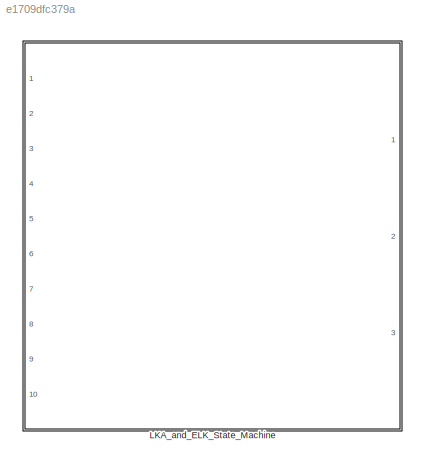
MODEL slx_e1709dfc379a
KIND model
CONFIG AbsTol = auto
CONFIG EnableMultiTasking = off
CONFIG FixedStep = auto
CONFIG MaxStep = auto
CONFIG MinStep = auto
CONFIG RelTol = 1e-3
CONFIG SampleTimeConstraint = Unconstrained
CONFIG Solver = VariableStepAuto
CONFIG SolverName = VariableStepAuto
CONFIG StartTime = 0.0
CONFIG StopTime = 10.0
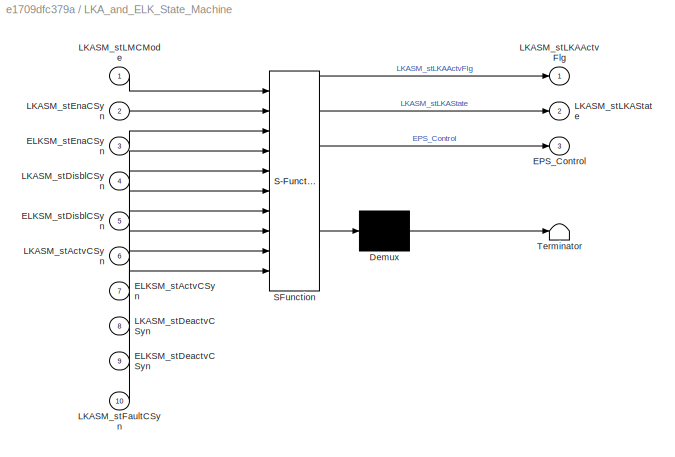
BLOCK [SubSystem] LKA_and_ELK_State_Machine
  Description = Block Name: LKA State Machine\nAb.: LKASM\nNo.: 1.1.3.0\nRev: 0.0.1\nUpdate Date: 19-3-26
  ErrorFcn = Stateflow.Translate.translate
  PermitHierarchicalResolution = ExplicitOnly
  Ports = [10, 3]
  RTWSystemCode = Nonreusable function
  RequestExecContextInheritance = off
  SFBlockType = Chart
  TreatAsAtomicUnit = on
BLOCK [Demux] LKA_and_ELK_State_Machine/ Demux 
  Outputs = 1
  Ports = [1, 1]
BLOCK [S-Function] LKA_and_ELK_State_Machine/ SFunction 
  EnableBusSupport = on
  FunctionName = sf_sfun
  PortCounts = [10 4]
  Ports = [10, 4]
  SFcnIsStateOwnerBlock = off
  SFunctionDeploymentMode = off
  Tag = Stateflow S-Function LKA_and_ELK_State_Machine 7
BLOCK [Terminator] LKA_and_ELK_State_Machine/ Terminator 
BLOCK [Inport] LKA_and_ELK_State_Machine/ELKSM_stActvCSyn
  IconDisplay = Port number
  Port = 7
BLOCK [Inport] LKA_and_ELK_State_Machine/ELKSM_stDeactvCSyn
  IconDisplay = Port number
  Port = 9
BLOCK [Inport] LKA_and_ELK_State_Machine/ELKSM_stDisblCSyn
  IconDisplay = Port number
  Port = 5
BLOCK [Inport] LKA_and_ELK_State_Machine/ELKSM_stEnaCSyn
  IconDisplay = Port number
  Port = 3
BLOCK [Outport] LKA_and_ELK_State_Machine/EPS_Control
  IconDisplay = Port number
  Port = 3
BLOCK [Inport] LKA_and_ELK_State_Machine/LKASM_stActvCSyn
  IconDisplay = Port number
  Port = 6
BLOCK [Inport] LKA_and_ELK_State_Machine/LKASM_stDeactvCSyn
  IconDisplay = Port number
  Port = 8
BLOCK [Inport] LKA_and_ELK_State_Machine/LKASM_stDisblCSyn
  IconDisplay = Port number
  Port = 4
BLOCK [Inport] LKA_and_ELK_State_Machine/LKASM_stEnaCSyn
  IconDisplay = Port number
  Port = 2
BLOCK [Inport] LKA_and_ELK_State_Machine/LKASM_stFaultCSyn
  IconDisplay = Port number
  Port = 10
BLOCK [Outport] LKA_and_ELK_State_Machine/LKASM_stLKAActvFlg
  IconDisplay = Port number
BLOCK [Outport] LKA_and_ELK_State_Machine/LKASM_stLKAState
  IconDisplay = Port number
  Port = 2
BLOCK [Inport] LKA_and_ELK_State_Machine/LKASM_stLMCMode
  IconDisplay = Port number
CHART LKA_and_ELK_State_Machine states=15 transitions=32
  STATE_LABEL 'SysOn'
  STATE_LABEL 'LKASelected\nen:\nLKASM_stLKAState = uint8(2);\n'
  STATE_LABEL 'Normal\n'
  STATE_LABEL 'LKA_Enable\nen:\nEPS_Control = uint8(1);\nex:\nEPS_Control = uint8(0);'
  STATE_LABEL 'LKAEnable\nen:\nLKASM_stLKAState = uint8(3);\nEPS_Control = uint8(1)\n\n'
  STATE_LABEL 'LKALeftActive\nen:\nLKASM_stLKAState = uint8(4);\nLKASM_stLKAActvFlg = LKASM_stActvCSyn;\nex:\nLKASM_stLKAActvFlg = uint8(0);\n'
  STATE_LABEL 'LKARightActive\nen:\nLKASM_stLKAState = uint8(5);\nLKASM_stLKAActvFlg = LKASM_stActvCSyn;\nex:\nLKASM_stLKAActvFlg = uint8(0);\n'
  STATE_LABEL '[LKASM_stActvCSyn == 1 & LKASM_stDeactvCSyn ==0 ]'
  STATE_LABEL '[LKASM_stActvCSyn == 2 & LKASM_stDeactvCSyn ==0 ]'
  STATE_LABEL '[LKASM_stDeactvCSyn ==1 ]'
  STATE_LABEL '[LKASM_stDeactvCSyn == 1]'
  STATE_LABEL '[LKASM_stActvCSyn == 2 & LKASM_stDeactvCSyn ==0]'
  STATE_LABEL '[LKASM_stActvCSyn == 1 & LKASM_stDeactvCSyn ==0]'
  STATE_LABEL 'ELK_Enable\nen:\nEPS_Control = uint8(2);\nex:\nEPS_Control = uint8(0);'
  STATE_LABEL 'ELKEnable\nen:\nLKASM_stLKAState = uint8(3);\n\n'
  STATE_LABEL 'ELKLeftActive\nen:\nLKASM_stLKAState = uint8(4);\nLKASM_stLKAActvFlg = ELKSM_stActvCSyn;\nex:\nLKASM_stLKAActvFlg = uint8(0);\n'
  STATE_LABEL 'ELKRightActive\nen:\nLKASM_stLKAState = uint8(5);\nLKASM_stLKAActvFlg = ELKSM_stActvCSyn;\nex:\nLKASM_stLKAActvFlg = uint8(0);\n'
  STATE_LABEL '[ELKSM_stActvCSyn < 15 & ELKSM_stDeactvCSyn ==0 ]'
  STATE_LABEL '[ELKSM_stActvCSyn > 15 & ELKSM_stDeactvCSyn ==0 ]'
  STATE_LABEL '[ELKSM_stDeactvCSyn == 1]'
  STATE_LABEL '[ELKSM_stDeactvCSyn == 1]'
  STATE_LABEL '[ELKSM_stActvCSyn > 15 & ELKSM_stDeactvCSyn ==0]'
  STATE_LABEL '[ELKSM_stActvCSyn < 15 & ELKSM_stDeactvCSyn ==0]'
  STATE_LABEL '[(LKASM_stEnaCSyn == 1 & LKASM_stDisblCSyn ==0) ]'
  STATE_LABEL '[(ELKSM_stEnaCSyn == 1 & ELKSM_stDisblCSyn ==0)]'
  STATE_LABEL '[ELKSM_stDisblCSyn ==1]'
  STATE_LABEL '[LKASM_stDisblCSyn ==1]'
  STATE_LABEL '[(LKASM_stEnaCSyn == 1 & LKASM_stDisblCSyn ==0) ]'
  STATE_LABEL '[(LKASM_stDisblCSyn ==1 & ELKSM_stDisblCSyn ==1)]'
  STATE_LABEL '[(ELKSM_stEnaCSyn == 1 & ELKSM_stDisblCSyn ==0)]'
  STATE_LABEL 'LKASelected\nen:\nLKASM_stLKAState = uint8(2);\n'
  STATE_LABEL 'Normal\n'
  STATE_LABEL 'LKA_Enable\nen:\nEPS_Control = uint8(1);\nex:\nEPS_Control = uint8(0);'
  STATE_LABEL 'LKAEnable\nen:\nLKASM_stLKAState = uint8(3);\nEPS_Control = uint8(1)\n\n'
  STATE_LABEL 'LKALeftActive\nen:\nLKASM_stLKAState = uint8(4);\nLKASM_stLKAActvFlg = LKASM_stActvCSyn;\nex:\nLKASM_stLKAActvFlg = uint8(0);\n'
  STATE_LABEL 'LKARightActive\nen:\nLKASM_stLKAState = uint8(5);\nLKASM_stLKAActvFlg = LKASM_stActvCSyn;\nex:\nLKASM_stLKAActvFlg = uint8(0);\n'
  STATE_LABEL '[LKASM_stActvCSyn == 1 & LKASM_stDeactvCSyn ==0 ]'
  STATE_LABEL '[LKASM_stActvCSyn == 2 & LKASM_stDeactvCSyn ==0 ]'
  STATE_LABEL '[LKASM_stDeactvCSyn ==1 ]'
  STATE_LABEL '[LKASM_stDeactvCSyn == 1]'
